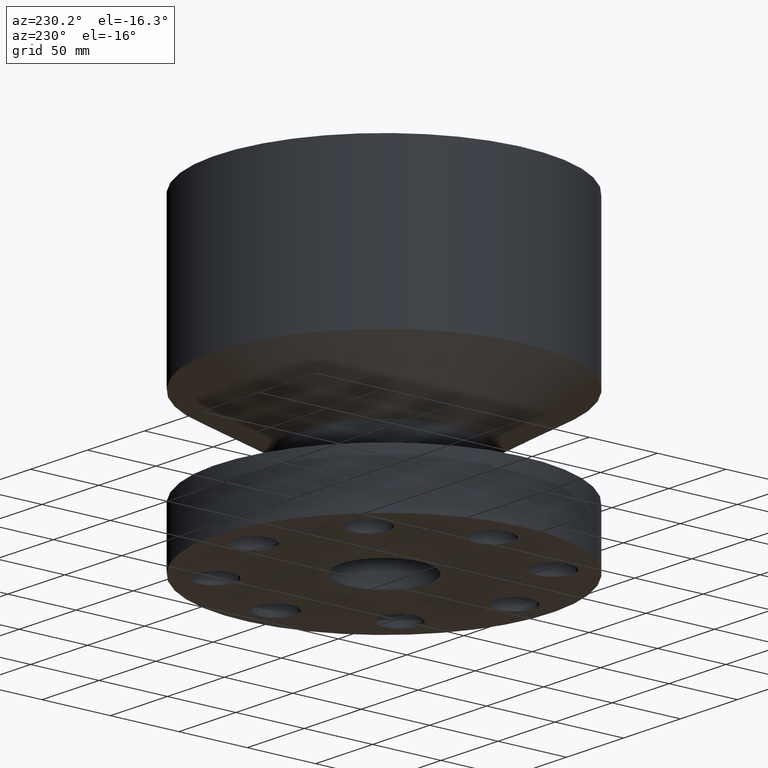
[diagram: clean part render]
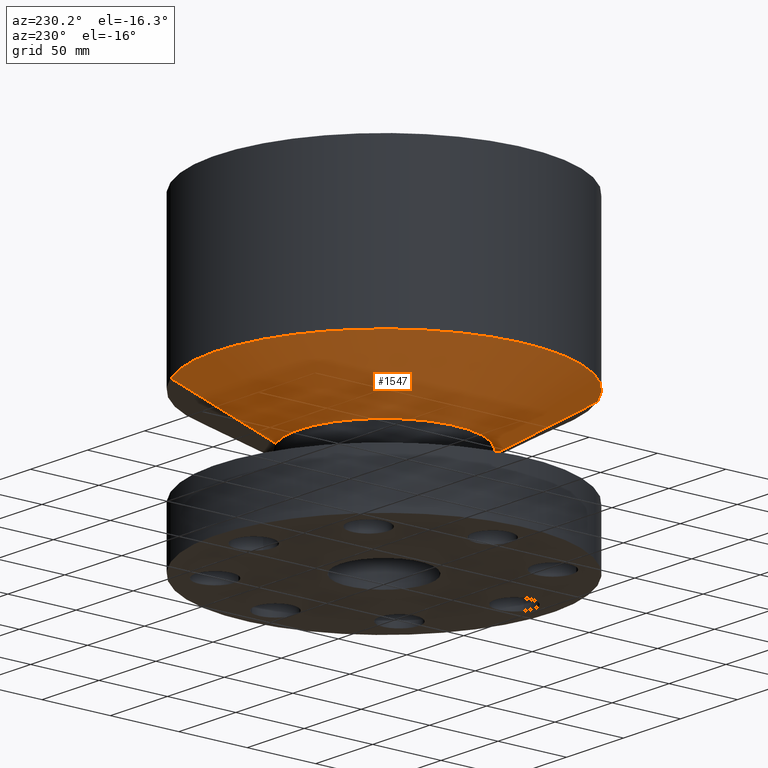
[diagram: same view with one face highlighted and labeled with its STEP entity id]
A machine part, auxiliary view. The second image highlights one B-rep face of the part: STEP entity #1547.
In plain terms, the highlighted conical surface has half-angle 60 deg.
Its self-contained STEP definition (entity closure, byte-faithful):
#982=AXIS2_PLACEMENT_3D('Circle Axis2P3D',#980,#981,$) ;
#1508=AXIS2_PLACEMENT_3D('Cone Axis2P3D',#1505,#1506,#1507) ;
#1538=AXIS2_PLACEMENT_3D('Circle Axis2P3D',#1536,#1537,$) ;
#958=CARTESIAN_POINT('Vertex',(1.1697983142,2.14130145102,2.87000000001)) ;
#965=CARTESIAN_POINT('Vertex',(-1.1697983142,-2.14130145102,2.87000000001)) ;
#980=CARTESIAN_POINT('Axis2P3D Location',(0.,0.,2.87000000001)) ;
#1505=CARTESIAN_POINT('Axis2P3D Location',(0.,0.,2.87000000001)) ;
#1510=CARTESIAN_POINT('Line Origine',(1.73791757745,3.18123678687,3.554160069)) ;
#1514=CARTESIAN_POINT('Vertex',(2.3060368407,4.22117212271,4.238320138)) ;
#1521=CARTESIAN_POINT('Vertex',(-2.3060368407,-4.22117212271,4.238320138)) ;
#1524=CARTESIAN_POINT('Line Origine',(-1.73791757745,-3.18123678687,3.554160069)) ;
#1536=CARTESIAN_POINT('Axis2P3D Location',(0.,0.,4.238320138)) ;
#981=DIRECTION('Axis2P3D Direction',(0.,0.,-0.0393700787402)) ;
#1506=DIRECTION('Axis2P3D Direction',(-0.,-0.,0.0393700787402)) ;
#1507=DIRECTION('Axis2P3D XDirection',(0.0188750212049,0.0345504945626,0.)) ;
#1511=DIRECTION('Vector Direction',(0.0163462478604,0.0299216060045,0.0196850393701)) ;
#1525=DIRECTION('Vector Direction',(-0.0163462478604,-0.0299216060045,0.0196850393701)) ;
#1537=DIRECTION('Axis2P3D Direction',(-0.,0.,0.0393700787402)) ;
#1512=VECTOR('Line Direction',#1511,0.0393700787402) ;
#1526=VECTOR('Line Direction',#1525,0.0393700787402) ;
#1542=ORIENTED_EDGE('',*,*,#984,.F.) ;
#1543=ORIENTED_EDGE('',*,*,#1528,.T.) ;
#1544=ORIENTED_EDGE('',*,*,#1540,.T.) ;
#1545=ORIENTED_EDGE('',*,*,#1516,.F.) ;
#1547=ADVANCED_FACE('PartBody',(#1546),#1509,.T.) ;
#983=CIRCLE('generated circle',#982,2.44000000001) ;
#1539=CIRCLE('generated circle',#1538,4.81000000002) ;
#1509=CONICAL_SURFACE('Cone',#1508,2.44000000001,1.0471975512) ;
#984=EDGE_CURVE('',#966,#959,#983,.T.) ;
#1516=EDGE_CURVE('',#959,#1515,#1513,.T.) ;
#1528=EDGE_CURVE('',#966,#1522,#1527,.T.) ;
#1540=EDGE_CURVE('',#1522,#1515,#1539,.F.) ;
#1541=EDGE_LOOP('',(#1542,#1543,#1544,#1545)) ;
#1546=FACE_OUTER_BOUND('',#1541,.T.) ;
#1513=LINE('Line',#1510,#1512) ;
#1527=LINE('Line',#1524,#1526) ;
#959=VERTEX_POINT('',#958) ;
#966=VERTEX_POINT('',#965) ;
#1515=VERTEX_POINT('',#1514) ;
#1522=VERTEX_POINT('',#1521) ;